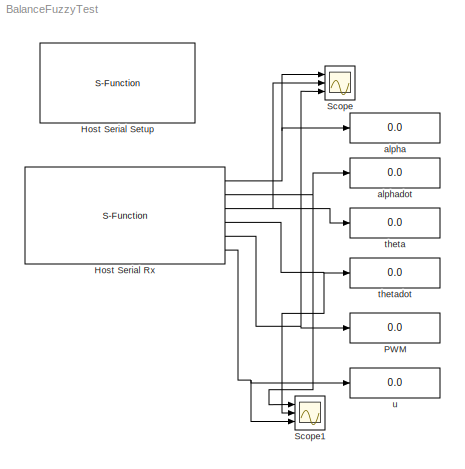
MODEL BalanceFuzzyTest
KIND model
BLOCK [S-Function] Host Serial Rx
  EnableBusSupport = off
  FunctionName = amg_usbconverter_n_serial
  Parameters = configuration,port,transfer,baudrate,stopbit,inputtype,outputtype,binheaderarray,binterminatorarray,asciiheader,asciiterminator,bindatalength,packetmode,timeout,sampletime,sampletimestr,blockid
  Ports = [0, 6]
  Priority = 1
  SID = 1
BLOCK [S-Function] Host Serial Setup
  EnableBusSupport = off
  FunctionName = amg_usbconverter_n_serial
  Parameters = configuration,port,transfer,baudrate,stopbit,inputtype,outputtype,binheaderarray,binterminatorarray,asciiheader,asciiterminator,bindatalength,packetmode,timeout,sampletime,sampletimestr,blockid
  Ports = []
  Priority = 1
  SID = 2
BLOCK [Display] PWM
  Decimation = 1
  Lockdown = off
  Ports = [1]
  SID = 8
BLOCK [Scope] Scope
  DataFormat = StructureWithTime
  Floating = off
  LimitDataPoints = off
  NumInputPorts = 3
  Ports = [3]
  SID = 4
  SampleTime = 0
  ShowLegends = off
  YMax = 5~5~5
  YMin = -5~-5~-5
BLOCK [Scope] Scope1
  DataFormat = StructureWithTime
  Floating = off
  LimitDataPoints = off
  NumInputPorts = 3
  Ports = [3]
  SID = 10
  SampleTime = 0
  SaveName = ScopeData1
  ShowLegends = off
  YMax = 5~5~5
  YMin = -5~-5~-5
BLOCK [Display] alpha
  Decimation = 1
  Lockdown = off
  Ports = [1]
  SID = 3
BLOCK [Display] alphadot
  Decimation = 1
  Lockdown = off
  Ports = [1]
  SID = 5
BLOCK [Display] theta
  Decimation = 1
  Lockdown = off
  Ports = [1]
  SID = 6
BLOCK [Display] thetadot
  Decimation = 1
  Lockdown = off
  Ports = [1]
  SID = 7
BLOCK [Display] u
  Decimation = 1
  Lockdown = off
  Ports = [1]
  SID = 9
NET Host Serial Rx:1 -> Scope:1, alpha:1
NET Host Serial Rx:2 -> Scope1:1, alphadot:1
NET Host Serial Rx:3 -> Scope:2, theta:1
NET Host Serial Rx:4 -> Scope1:2, thetadot:1
NET Host Serial Rx:5 -> PWM:1, Scope:3
NET Host Serial Rx:6 -> Scope1:3, u:1
note: NET lines group one-source signal fan-out (src -> all destinations, sorted); 1:1 wires keep LINE
